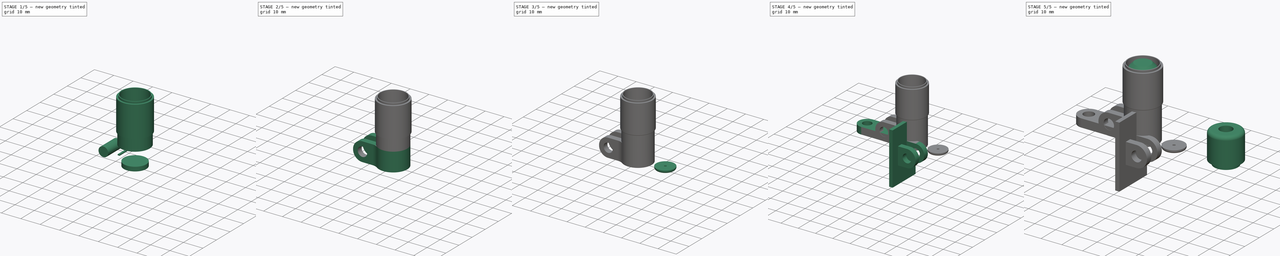
[diagram: build sequence overview — one tinted view per stage of 5, left to right]
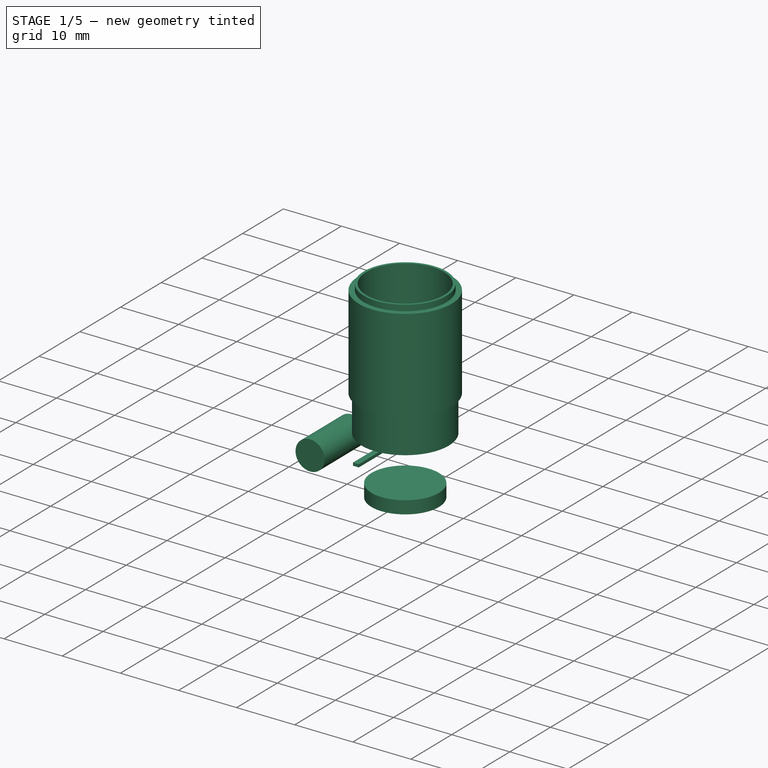
[diagram: stage 1 of 5 — iso view after this stage's code; geometry added in this stage tinted green]
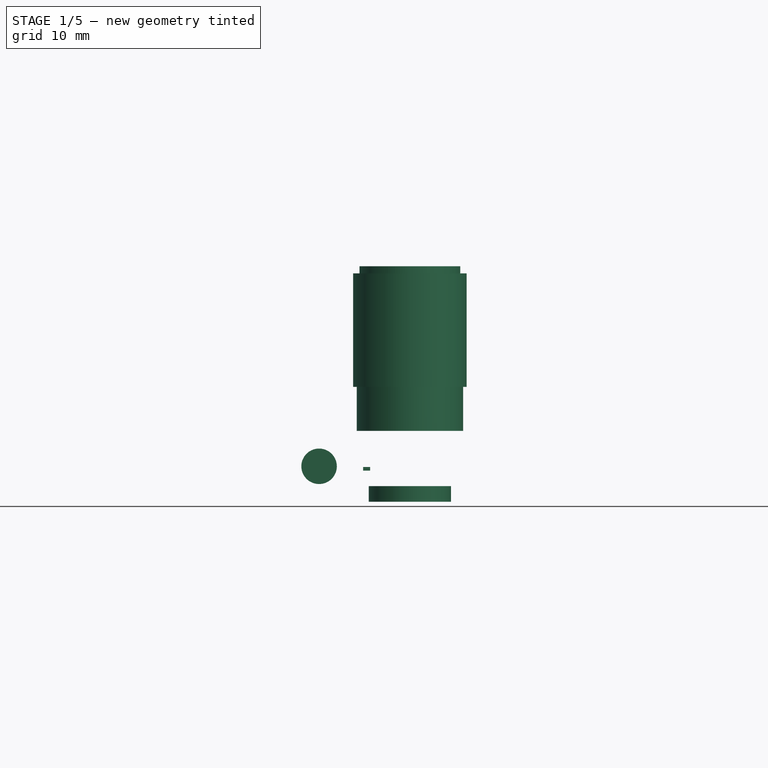
[diagram: stage 1 of 5 — front view after this stage's code; geometry added in this stage tinted green]
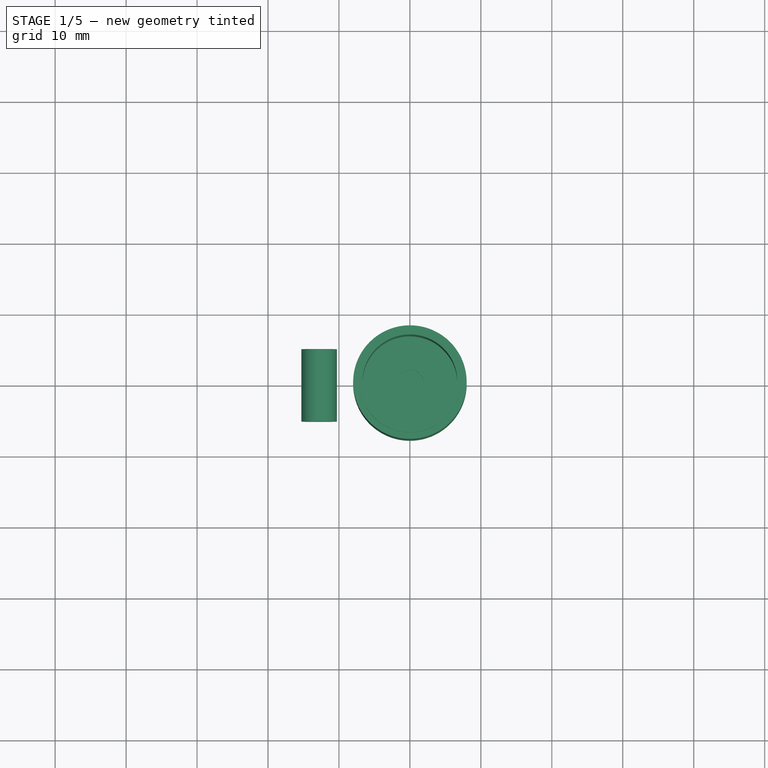
[diagram: stage 1 of 5 — top view after this stage's code; geometry added in this stage tinted green]
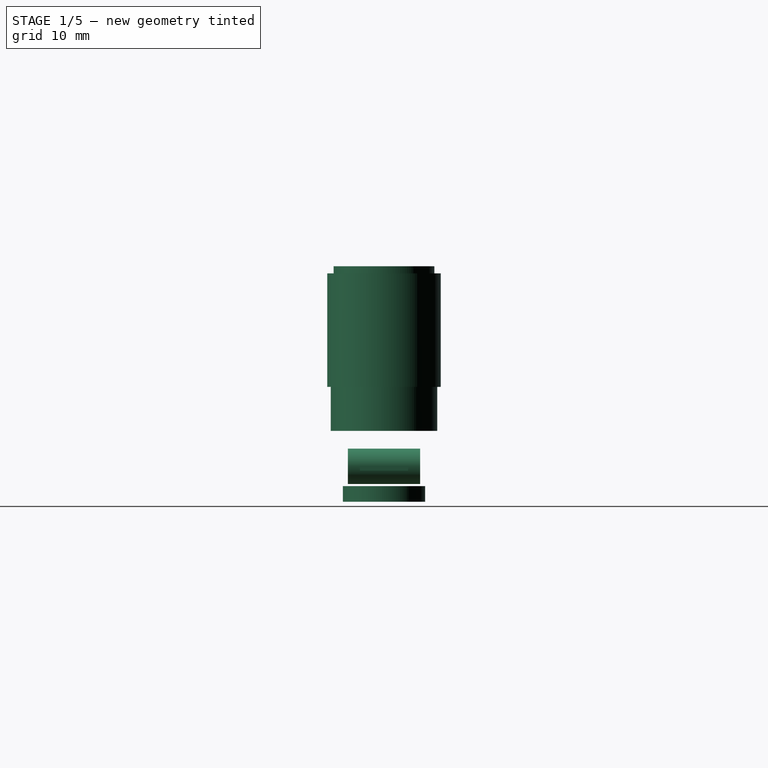
[diagram: stage 1 of 5 — right view after this stage's code; geometry added in this stage tinted green]
FCSTD DOCUMENT  (FreeCAD 0.19R24267 +99 (Git))
Label: Jalusie_All
License: All rights reserved
LicenseURL: http://en.wikipedia.org/wiki/All_rights_reserved
objects: Sketcher::SketchObject×14, Part::Cut×9, Part::Extrusion×6, Part::Revolution×5, Part::Fillet×5, Part::Box×3, Part::Loft×2, Part::Cylinder×2, Part::Fuse×2, Part::Part2DObjectPython×1, Part::FeaturePython×1, Spreadsheet::Sheet×1
note: 50 computed .brp shape members not serialized (recipe doc carries the construction recipe); baked Part::Feature solids carry a one-line shape summary decoded from their .brp

FEATURE [Part::Cylinder] Cylinder  label="Цилиндр"
  Angle = 360
  AttacherType = Attacher::AttachEngine3D
  Height = 2.2
  Radius = 5.8
FEATURE [Sketcher::SketchObject] Sketch008
  FullyConstrained = false
  expr: Constraints[22] = <<Sketch007>>.Constraints.MotorContactHeight
  expr: Constraints[23] = <<Sketch007>>.Constraints.MotorContactHeight
  sketch-geometry (15):
    g0: GeomPoint X=-7 Y=0 Z=0
    g1: ArcOfCircle CenterX=0 CenterY=0 CenterZ=0 NormalX=0 NormalY=0 NormalZ=1 AngleXU=0 Radius=5.2 StartAngle=5.34296 EndAngle=7.22341
    g2: LineSegment StartX=3.06594 StartY=-4.2 StartZ=0 EndX=-4.4 EndY=-4.2 EndZ=0
    g3: LineSegment StartX=-5.2 StartY=-1.3 StartZ=0 EndX=-5.2 EndY=1.3 EndZ=0
    g4: LineSegment StartX=-4.4 StartY=4.2 StartZ=0 EndX=3.06594 EndY=4.2 EndZ=0
    g5: ArcOfCircle CenterX=-4.4 CenterY=-3.2 CenterZ=0 NormalX=0 NormalY=0 NormalZ=1 AngleXU=0 Radius=1 StartAngle=3.78509 EndAngle=4.71239
    g6: ArcOfCircle CenterX=-4.4 CenterY=3.2 CenterZ=0 NormalX=0 NormalY=0 NormalZ=1 AngleXU=0 Radius=1 StartAngle=1.5708 EndAngle=2.49809
    g7: LineSegment StartX=-5.2 StartY=3.8 StartZ=0 EndX=-5.6 EndY=3.8 EndZ=0
    g8: LineSegment StartX=-5.6 StartY=3.8 StartZ=0 EndX=-5.6 EndY=1.3 EndZ=0
    g9: LineSegment StartX=-5.6 StartY=1.3 StartZ=0 EndX=-5.2 EndY=1.3 EndZ=0
    g10: LineSegment StartX=-5.2 StartY=-3.8 StartZ=0 EndX=-5.6 EndY=-3.8 EndZ=0
    g11: LineSegment StartX=-5.6 StartY=-3.8 StartZ=0 EndX=-5.6 EndY=-1.3 EndZ=0
    g12: LineSegment StartX=-5.6 StartY=-1.3 StartZ=0 EndX=-5.2 EndY=-1.3 EndZ=0
    g13: Circle CenterX=0 CenterY=0 CenterZ=0 NormalX=0 NormalY=0 NormalZ=1 AngleXU=0 Radius=7.5
    g14: GeomPoint X=-5.2 Y=0 Z=0
  constraints (42):
    c: Horizontal(g2)
    c: Vertical(g3)
    c: Horizontal(g4)
    c: Coincident(g1,g4)
    c: Coincident(g1,g2)
    c: Tangent(g2,g5) = 1.5708
    c: Tangent(g4,g6) = 1.5708
    c: Horizontal(g7)
    c: Coincident(g7,g8)
    c: Vertical(g8)
    c: Coincident(g9,g8)
    c: Horizontal(g9)
    c: Horizontal(g10)
    c: Coincident(g10,g11)
    c: Vertical(g11)
    c: Coincident(g11,g12)
    c: Horizontal(g12)
    c: Coincident(g3,g12)
    c: Coincident(g3,g9)
    c: Coincident(g13,g1)
    c: Radius(g13) = 7.5
    c: Radius(g1) = 5.2
    c: Distance(g8) = 2.5
    c: Distance(g11) = 2.5
    c: Distance(g12) = 0.4
    c: DistanceX(g1,g1) = 0
    c: DistanceY(g1,g1) = 8.4
    c: DistanceX(g-1,g1) = 0
    c: DistanceY(g1,g-1) = 0
    c: DistanceX(g5,g10) = 0
    c: DistanceY(g5,g10) = 0
    c: DistanceX(g5,g3) = 0
    c: DistanceX(g7,g6) = 0
    c: DistanceY(g7,g6) = 0
    c: Radius(g6) = 1
    c: Radius(g5) = 1
    c: DistanceX(g6,g3) = 0
    c: DistanceX(g8,g11) = 0
    c: PointOnObject(g14,g-1)
    c: Symmetric(g3,g3,g14)
    c: Tangent(g3,g1)
    c: DistanceY(g3,g3) = 2.6
FEATURE [Part::Extrusion] Extrude002
  Base = -> Sketch008
  Dir = (0,0,1)
  DirMode = 2
  FaceMakerClass = Part::FaceMakerBullseye
  LengthFwd = 6.2
  LengthRev = 0
  Placement = pos=(0,0,10) rot=(0,0,1;0rad)
  Solid = true
  Symmetric = false
FEATURE [Sketcher::SketchObject] Sketch009
  FullyConstrained = true
  Placement = pos=(0,0,0) rot=(0.57735,0.57735,0.57735;2.0944rad)
  sketch-geometry (9):
    g0: LineSegment StartX=2 StartY=0 StartZ=0 EndX=8 EndY=0 EndZ=0
    g1: LineSegment StartX=8 StartY=0 StartZ=0 EndX=8 EndY=16 EndZ=0
    g2: LineSegment StartX=6.7 StartY=16 StartZ=0 EndX=6.7 EndY=1 EndZ=0
    g3: LineSegment StartX=6.7 StartY=1 StartZ=0 EndX=2 EndY=1 EndZ=0
    g4: LineSegment StartX=2 StartY=1 StartZ=0 EndX=2 EndY=0 EndZ=0
    g5: LineSegment StartX=6.7 StartY=16 StartZ=0 EndX=6.7 EndY=17 EndZ=0
    g6: LineSegment StartX=6.7 StartY=17 StartZ=0 EndX=7.1 EndY=17 EndZ=0
    g7: LineSegment StartX=7.1 StartY=17 StartZ=0 EndX=7.1 EndY=16 EndZ=0
    g8: LineSegment StartX=7.1 StartY=16 StartZ=0 EndX=8 EndY=16 EndZ=0
  constraints (27):
    c: PointOnObject(g0,g-1)
    c: Horizontal(g0)
    c: Coincident(g0,g1)
    c: Vertical(g1)
    c: Vertical(g2)
    c: Coincident(g2,g3)
    c: Horizontal(g3)
    c: Coincident(g3,g4)
    c: Coincident(g4,g0)
    c: DistanceX(g-1,g0) = 2
    c: DistanceX(g3,g0) = 0
    c: Distance(g4) = 1
    c: Distance(g0) = 6
    c: DistanceX(g3,g3) = 4.7
    c: Distance(g1) = 16
    c: Distance(g2) = 15
    c: Coincident(g2,g5)
    c: Vertical(g5)
    c: Coincident(g5,g6)
    c: Coincident(g6,g7)
    c: Vertical(g7)
    c: Horizontal(g6)
    c: Distance(g5) = 1  'СoverThickness'
    c: Distance(g6) = 0.4
    c: Coincident(g8,g7)
    c: Coincident(g8,g1)
    c: Horizontal(g8)
FEATURE [Part::Revolution] Revolve003
  Angle = 360
  Axis = (0,0,1)
  Base = (0,0,0)
  FaceMakerClass = Part::FaceMakerBullseye
  Placement = pos=(0,0,16.2) rot=(0,0,1;0rad)
  Solid = true
  Source = -> Sketch009
  Symmetric = false
FEATURE [Part::Fuse] Fusion
  Base = -> Extrude002
  Tool = -> Revolve003
FEATURE [Part::Cylinder] Cylinder001  label="CylinderHoll"
  Angle = 360
  AttacherType = Attacher::AttachEngine3D
  Height = 10.2
  Placement = pos=(-12.8,5.1,5) rot=(1,0,0;1.5708rad)
  Radius = 2.5
  expr: Height = <<Sketch007>>.Constraints.SlotWidth + <<Sketch007>>.Constraints.SlotWallWidth * 2
FEATURE [Part::Box] Box  label="Куб"
  AttacherType = Attacher::AttachEngine3D
  Height = 0.5
  Length = 1
  Placement = pos=(-6.6,-3.4,4.4) rot=(0,0,1;0rad)
  Width = 6.8
FEATURE [Spreadsheet::Sheet] Spreadsheet  label="SheetSize"
  cells = A1=Name; B1=Value; A2=Size tolerances 0.2; B2==0.2mm
FEATURE [Part::Box] Box001  label="Куб001"
  AttacherType = Attacher::AttachEngine3D
  Height = 1
  Length = 0.4
  Placement = pos=(-5.6,1.3,16.2) rot=(0,0,1;0rad)
  Width = 2.5
  expr: Height = <<Sketch009>>.Constraints.СoverThickness
  expr: Width = <<Sketch007>>.Constraints.MotorContactHeight
  expr: Length = <<Sketch007>>.Constraints.MotorContactWidth
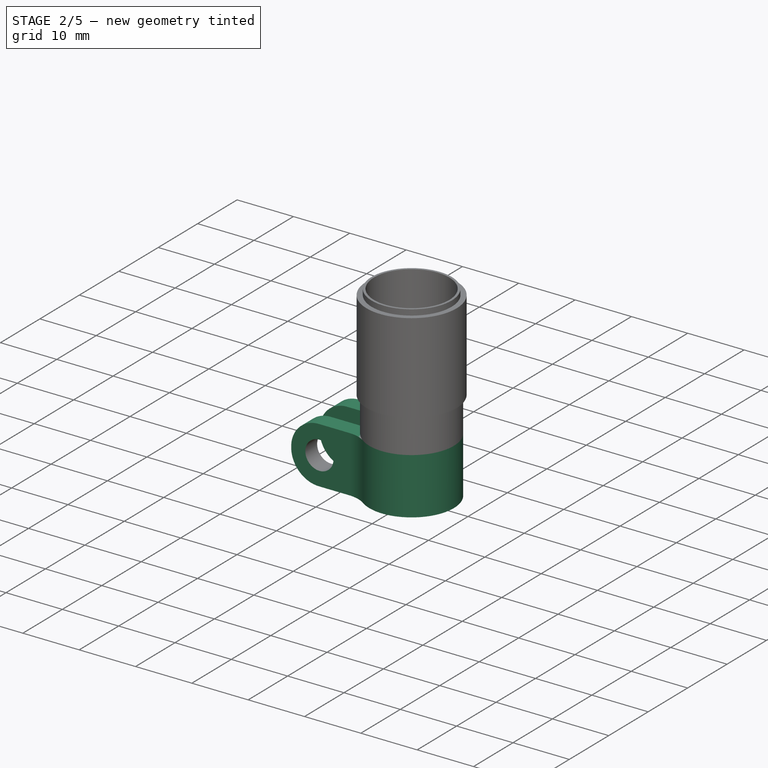
[diagram: stage 2 of 5 — iso view after this stage's code; geometry added in this stage tinted green]
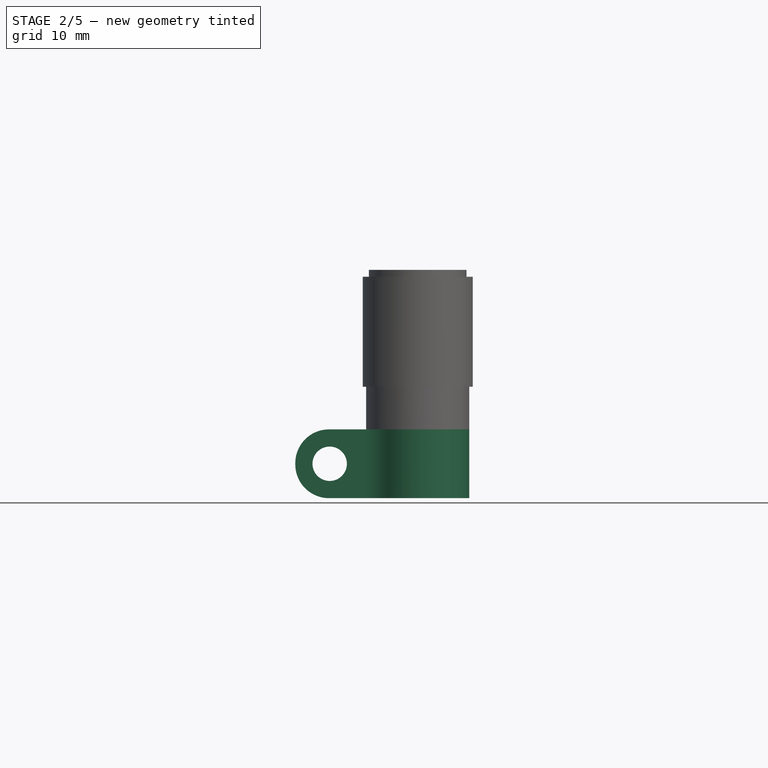
[diagram: stage 2 of 5 — front view after this stage's code; geometry added in this stage tinted green]
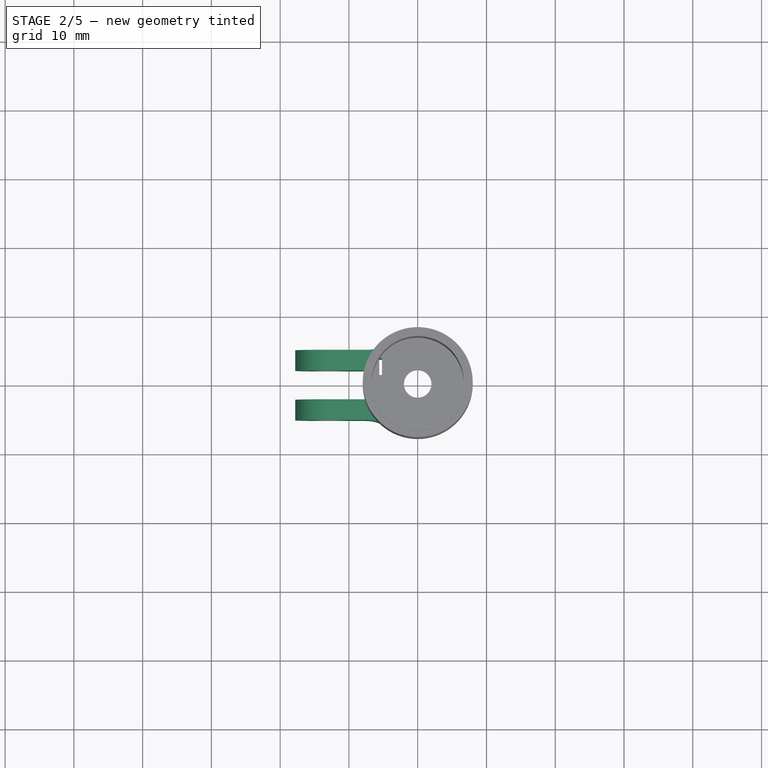
[diagram: stage 2 of 5 — top view after this stage's code; geometry added in this stage tinted green]
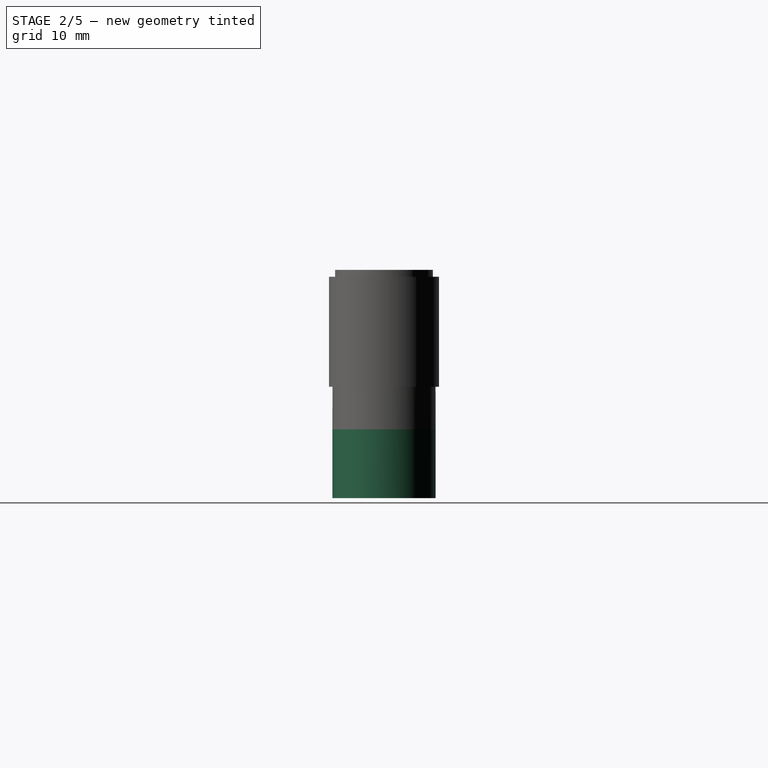
[diagram: stage 2 of 5 — right view after this stage's code; geometry added in this stage tinted green]
FEATURE [Sketcher::SketchObject] Sketch007
  FullyConstrained = false
  expr: .Constraints.Constraint53 = .Constraints.MotorContactHeight
  expr: Constraints[64] = .Constraints.SlotWallWidth
  sketch-geometry (24):
    g0: ArcOfCircle CenterX=0 CenterY=0 CenterZ=0 NormalX=0 NormalY=0 NormalZ=1 AngleXU=0 Radius=7.5 StartAngle=4.09506 EndAngle=8.49138
    g1: LineSegment StartX=-7.52689 StartY=-5.1 StartZ=0 EndX=-17.8 EndY=-5.1 EndZ=0
    g2: LineSegment StartX=-17.8 StartY=-5.1 StartZ=0 EndX=-17.8 EndY=-2.1 EndZ=0
    g3: LineSegment StartX=-17.8 StartY=-2.1 StartZ=0 EndX=-7.6 EndY=-2.1 EndZ=0
    g4: LineSegment StartX=-7.6 StartY=-2.1 StartZ=0 EndX=-7.6 EndY=2.1 EndZ=0
    g5: LineSegment StartX=-7.6 StartY=2.1 StartZ=0 EndX=-17.8 EndY=2.1 EndZ=0
    g6: LineSegment StartX=-17.8 StartY=2.1 StartZ=0 EndX=-17.8 EndY=5.1 EndZ=0
    g7: LineSegment StartX=-17.8 StartY=5.1 StartZ=0 EndX=-7.2739 EndY=5.1 EndZ=0
    g8: GeomPoint X=-7.6 Y=0 Z=0
    g9: ArcOfCircle CenterX=-7.52689 CenterY=-10.6029 CenterZ=0 NormalX=0 NormalY=0 NormalZ=1 AngleXU=0 Radius=5.50294 StartAngle=0.953465 EndAngle=1.5708
    g10: ArcOfCircle CenterX=-7.2739 CenterY=9.82284 CenterZ=0 NormalX=0 NormalY=0 NormalZ=1 AngleXU=0 Radius=4.72284 StartAngle=4.71239 EndAngle=5.34979
    g11: ArcOfCircle CenterX=0 CenterY=0 CenterZ=0 NormalX=0 NormalY=0 NormalZ=1 AngleXU=0 Radius=5.2 StartAngle=5.34296 EndAngle=7.22341
    g12: LineSegment StartX=3.06594 StartY=-4.2 StartZ=0 EndX=-4.4 EndY=-4.2 EndZ=0
    g13: LineSegment StartX=-5.2 StartY=-1.3 StartZ=0 EndX=-5.2 EndY=1.3 EndZ=0
    g14: LineSegment StartX=-4.4 StartY=4.2 StartZ=0 EndX=3.06594 EndY=4.2 EndZ=0
    g15: ArcOfCircle CenterX=-4.4 CenterY=-3.2 CenterZ=0 NormalX=0 NormalY=0 NormalZ=1 AngleXU=0 Radius=1 StartAngle=3.78509 EndAngle=4.71239
    g16: ArcOfCircle CenterX=-4.4 CenterY=3.2 CenterZ=0 NormalX=0 NormalY=0 NormalZ=1 AngleXU=0 Radius=1 StartAngle=1.5708 EndAngle=2.49809
    g17: LineSegment StartX=-5.2 StartY=3.8 StartZ=0 EndX=-5.6 EndY=3.8 EndZ=0
    g18: LineSegment StartX=-5.6 StartY=3.8 StartZ=0 EndX=-5.6 EndY=1.3 EndZ=0
    g19: LineSegment StartX=-5.6 StartY=1.3 StartZ=0 EndX=-5.2 EndY=1.3 EndZ=0
    g20: LineSegment StartX=-5.2 StartY=-3.8 StartZ=0 EndX=-5.6 EndY=-3.8 EndZ=0
    g21: LineSegment StartX=-5.6 StartY=-3.8 StartZ=0 EndX=-5.6 EndY=-1.3 EndZ=0
    g22: LineSegment StartX=-5.6 StartY=-1.3 StartZ=0 EndX=-5.2 EndY=-1.3 EndZ=0
    g23: GeomPoint X=-5.2 Y=0 Z=0
  constraints (67):
    c: Radius(g0) = 7.5
    c: Horizontal(g1)
    c: Coincident(g1,g2)
    c: Vertical(g2)
    c: Coincident(g2,g3)
    c: Horizontal(g3)
    c: Coincident(g3,g4)
    c: Vertical(g4)
    c: Coincident(g4,g5)
    c: Horizontal(g5)
    c: Coincident(g5,g6)
    c: Vertical(g6)
    c: Coincident(g6,g7)
    c: Horizontal(g7)
    c: Symmetric(g4,g4,g8)
    c: Distance(g2) = 3  'SlotWallWidth'
    c: DistanceX(g2,g5) = 0
    c: Distance(g3) = 10.2  'SlotLen'
    c: Tangent(g0,g9) = 1.5708
    c: Tangent(g1,g9) = -1.5708
    c: Tangent(g7,g10) = -1.5708
    c: Tangent(g0,g10) = 1.5708
    c: Coincident(g11,g0)
    c: Radius(g11) = 5.2
    c: Horizontal(g12)
    c: Vertical(g13)
    c: Horizontal(g14)
    c: DistanceY(g0,g8) = 0
    c: DistanceY(g-1,g0) = 0
    c: DistanceX(g0,g-1) = 0
    c: Coincident(g11,g14)
    c: Coincident(g11,g12)
    c: Tangent(g12,g15) = 1.5708
    c: Tangent(g14,g16) = 1.5708
    c: Radius(g16) = 1
    c: Radius(g15) = 1
    c: Horizontal(g17)
    c: Coincident(g17,g18)
    c: Vertical(g18)
    c: Tangent(g13,g11)
    c: Coincident(g19,g18)
    c: Horizontal(g19)
    c: Horizontal(g20)
    c: Coincident(g20,g21)
    c: Vertical(g21)
    c: Coincident(g21,g22)
    c: Horizontal(g22)
    c: DistanceX(g11,g11) = 0
    c: DistanceY(g11,g11) = 8.4
    c: Distance(g22) = 0.4  'MotorContactWidth'
    c: DistanceX(g18,g21) = 0
    c: Distance(g21) = 2.5  'MotorContactHeight'
    c: Distance(g18) = 2.5  'Constraint53'
    c: Coincident(g13,g22)
    c: Coincident(g13,g19)
    c: Symmetric(g13,g13,g23)
    c: DistanceY(g0,g23) = 0
    c: DistanceY(g17,g16) = 0
    c: DistanceX(g20,g15) = 0
    c: DistanceY(g15,g20) = 0
    c: DistanceX(g17,g16) = 0
    c: DistanceX(g13,g16) = 0
    c: DistanceX(g14,g12) = 0
    c: Distance(g13) = 2.6
    c: Distance(g6) = 3
    c: DistanceX(g8,g21) = 2
    c: DistanceY(g2,g5) = 4.2  'SlotWidth'
FEATURE [Part::Extrusion] Extrude001
  Base = -> Sketch007
  Dir = (0,0,1)
  DirMode = 2
  FaceMakerClass = Part::FaceMakerBullseye
  LengthFwd = 10
  LengthRev = 0
  Solid = true
  Symmetric = false
FEATURE [Part::Cut] Cut003
  Base = -> Extrude001
  Tool = -> Cylinder
FEATURE [Part::Fillet] Fillet
  Base = -> Cut003
  Edges = 4 edges r=4.9: [Edge12,Edge15,Edge31,Edge35]
FEATURE [Part::Fuse] Fusion001
  Base = -> Fillet
  Tool = -> Fusion
FEATURE [Part::Cut] Cut004
  Base = -> Fusion001
  Tool = -> Cylinder001
FEATURE [Part::Cut] Cut005
  Base = -> Cut004
  Tool = -> Box
FEATURE [Part::Cut] Cut009
  Base = -> Cut005
  Tool = -> Box001
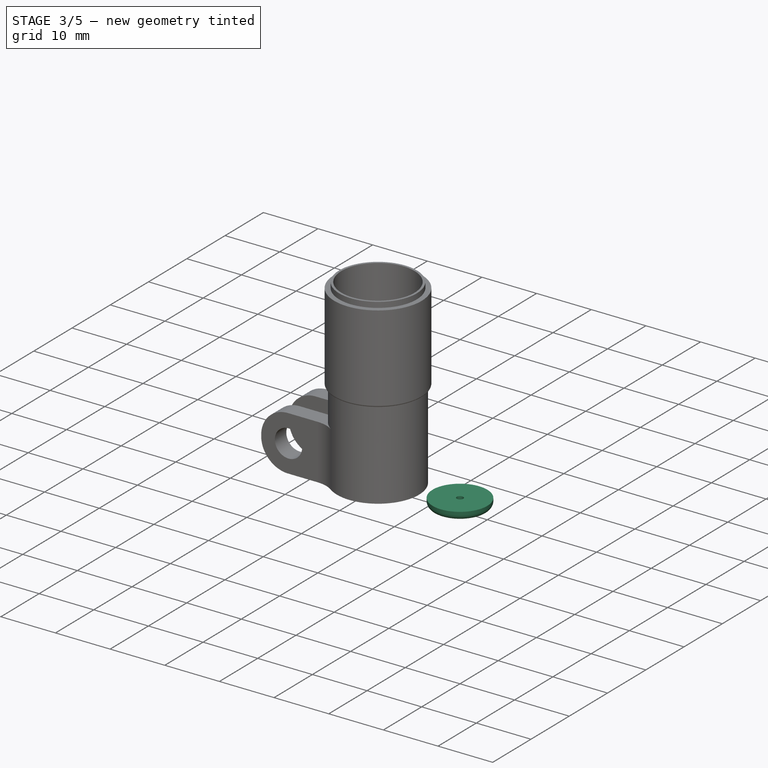
[diagram: stage 3 of 5 — iso view after this stage's code; geometry added in this stage tinted green]
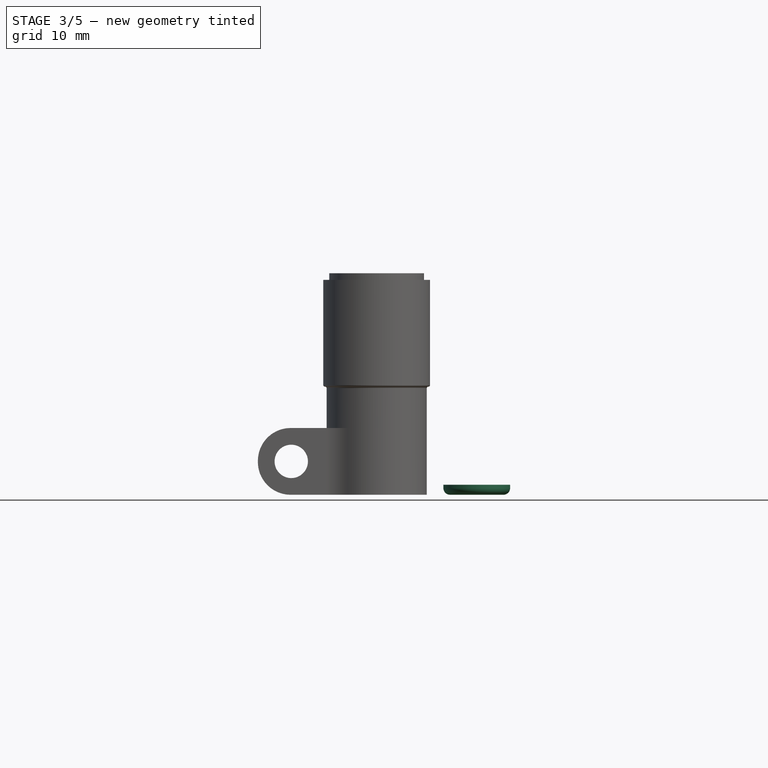
[diagram: stage 3 of 5 — front view after this stage's code; geometry added in this stage tinted green]
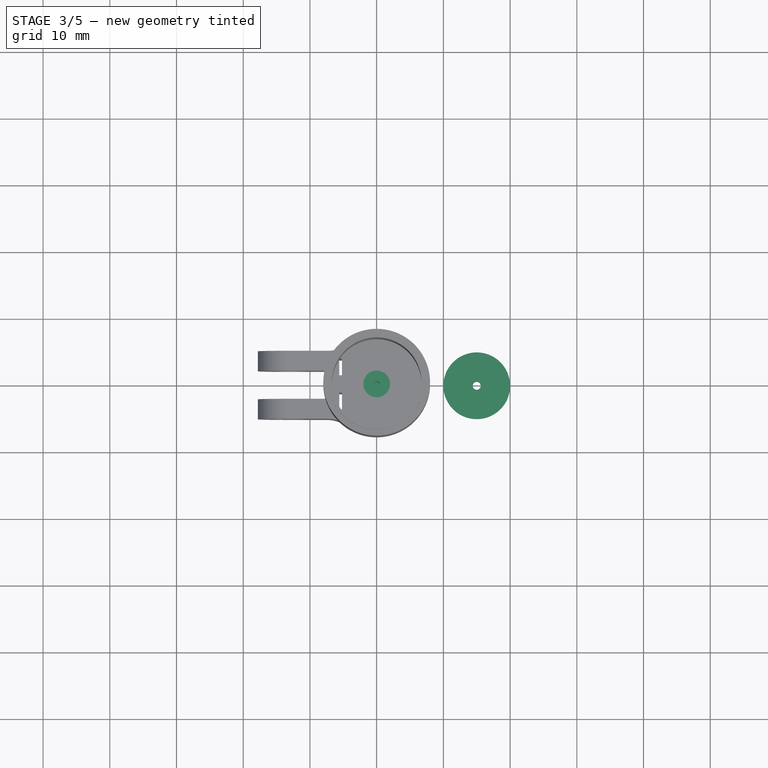
[diagram: stage 3 of 5 — top view after this stage's code; geometry added in this stage tinted green]
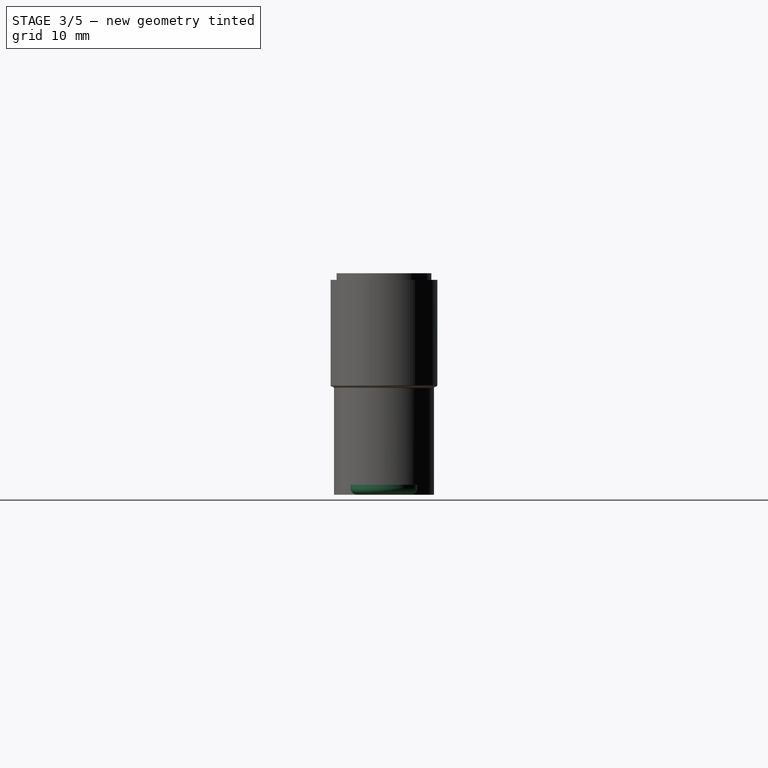
[diagram: stage 3 of 5 — right view after this stage's code; geometry added in this stage tinted green]
FEATURE [Sketcher::SketchObject] Sketch013
  FullyConstrained = false
  Placement = pos=(0,0,0) rot=(1,0,0;1.5708rad)
  expr: Constraints[16] = <<Extrude001>>.LengthFwd / 2
  sketch-geometry (8):
    g0: LineSegment StartX=0 StartY=0 StartZ=0 EndX=5 EndY=0 EndZ=0
    g1: LineSegment StartX=5 StartY=0 StartZ=0 EndX=5 EndY=1.5 EndZ=0
    g2: LineSegment StartX=5 StartY=1.5 StartZ=0 EndX=2.3 EndY=1.5 EndZ=0
    g3: LineSegment StartX=2.3 StartY=1.5 StartZ=0 EndX=2.3 EndY=10.9 EndZ=0
    g4: LineSegment StartX=2.3 StartY=10.9 StartZ=0 EndX=0.5 EndY=10.9 EndZ=0
    g5: LineSegment StartX=0.5 StartY=10.9 StartZ=0 EndX=0.5 EndY=5.6444 EndZ=0
    g6: LineSegment StartX=0.5 StartY=5.6444 StartZ=0 EndX=0 EndY=5.6444 EndZ=0
    g7: LineSegment StartX=0 StartY=5.6444 StartZ=0 EndX=0 EndY=0 EndZ=0
  constraints (22):
    c: Coincident(g-1,g0)
    c: PointOnObject(g0,g-1)
    c: Coincident(g0,g1)
    c: Vertical(g1)
    c: Coincident(g1,g2)
    c: Horizontal(g2)
    c: Coincident(g2,g3)
    c: Vertical(g3)
    c: Coincident(g3,g4)
    c: Coincident(g4,g5)
    c: Vertical(g5)
    c: Coincident(g5,g6)
    c: PointOnObject(g6,g-2)
    c: Horizontal(g6)
    c: Coincident(g6,g7)
    c: Coincident(g7,g0)
    c: Distance(g0) = 5
    c: Distance(g1) = 1.5
    c: Horizontal(g4)
    c: Distance(g4) = 1.8
    c: Distance(g3) = 9.4
    c: DistanceX(g6,g2) = 2.3
FEATURE [Part::Revolution] Revolve004  label="_7_"
  Angle = 360
  Axis = (0,0,1)
  Base = (0,0,0)
  FaceMakerClass = Part::FaceMakerBullseye
  Solid = true
  Source = -> Sketch013
  Symmetric = false
FEATURE [Part::FeaturePython] Tube  label="_8_"  # WARN: FeaturePython — macro-defined, semantics opaque (R4)
  AttacherType = Attacher::AttachEngine3D
  Height = 1.5
  InnerRadius = 0.6
  OuterRadius = 5
  Placement = pos=(15,0,0) rot=(0,0,1;0rad)
FEATURE [Part::Fillet] Fillet002  label="_8_001"
  Base = -> Tube
  Edges = 1 edges r=1: [Edge3]
FEATURE [Part::Box] Box002  label="Куб002"
  AttacherType = Attacher::AttachEngine3D
  Height = 1
  Length = 0.4
  Placement = pos=(-5.6,-3.8,16.2) rot=(0,0,1;0rad)
  Width = 2.5
  expr: Height = <<Sketch009>>.Constraints.СoverThickness
  expr: Length = <<Sketch007>>.Constraints.MotorContactWidth
  expr: Width = <<Sketch007>>.Constraints.MotorContactHeight
FEATURE [Part::Cut] Cut010  label="_4_"
  Base = -> Cut009
  Tool = -> Box002
FEATURE [Part::Fillet] Fillet003
  Base = -> Cut010
  Edges = 1 edges r=0.25: [Edge141]
FEATURE [Part::Fillet] Fillet004
  Base = -> Fillet003
  Edges = 1 edges r=0.24: [Edge2]
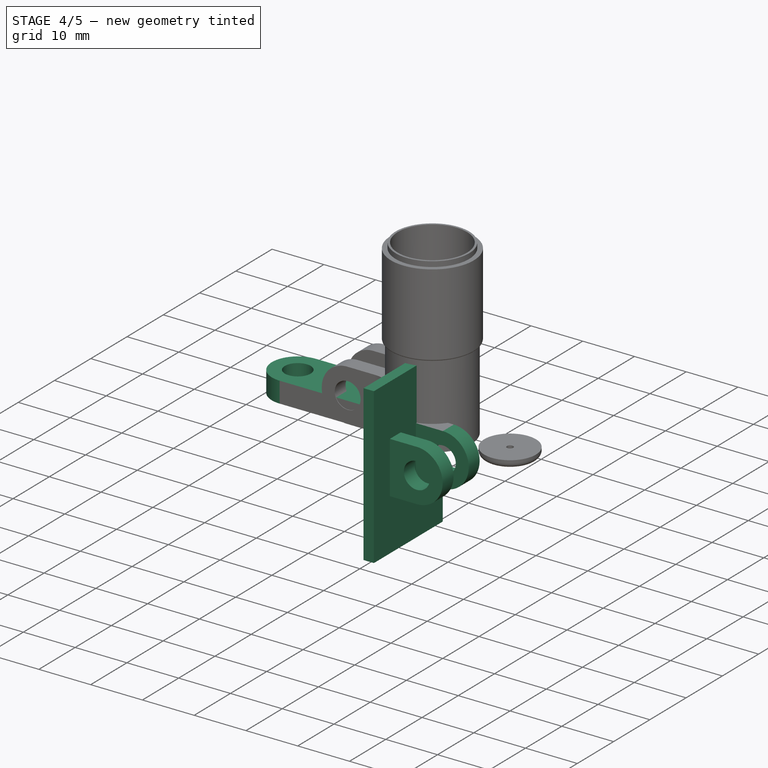
[diagram: stage 4 of 5 — iso view after this stage's code; geometry added in this stage tinted green]
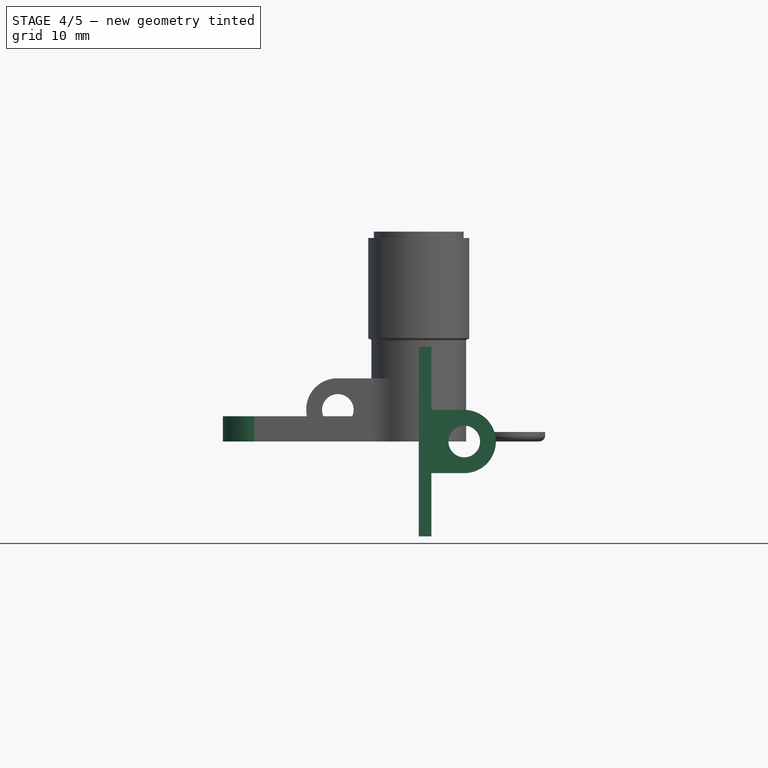
[diagram: stage 4 of 5 — front view after this stage's code; geometry added in this stage tinted green]
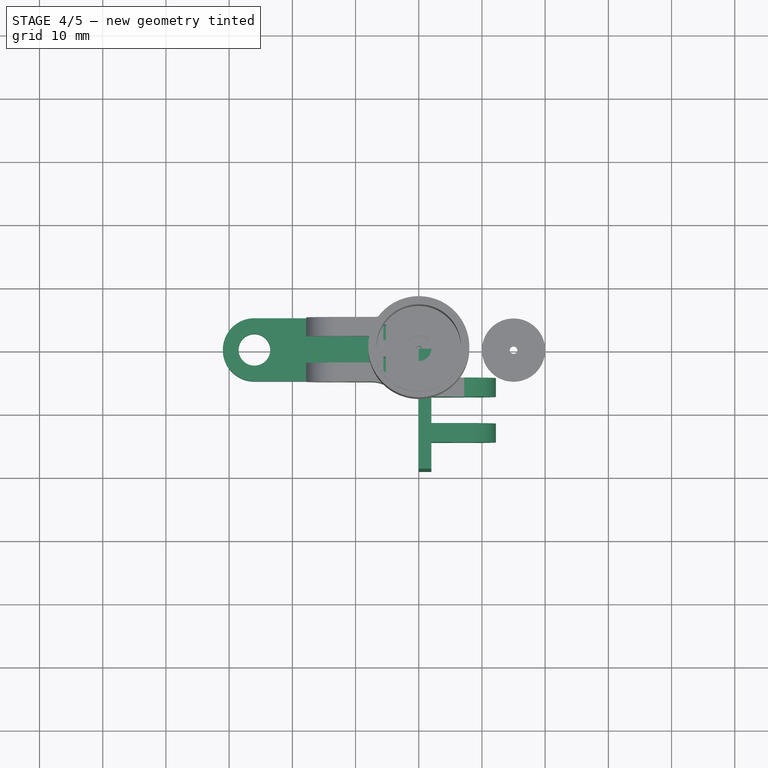
[diagram: stage 4 of 5 — top view after this stage's code; geometry added in this stage tinted green]
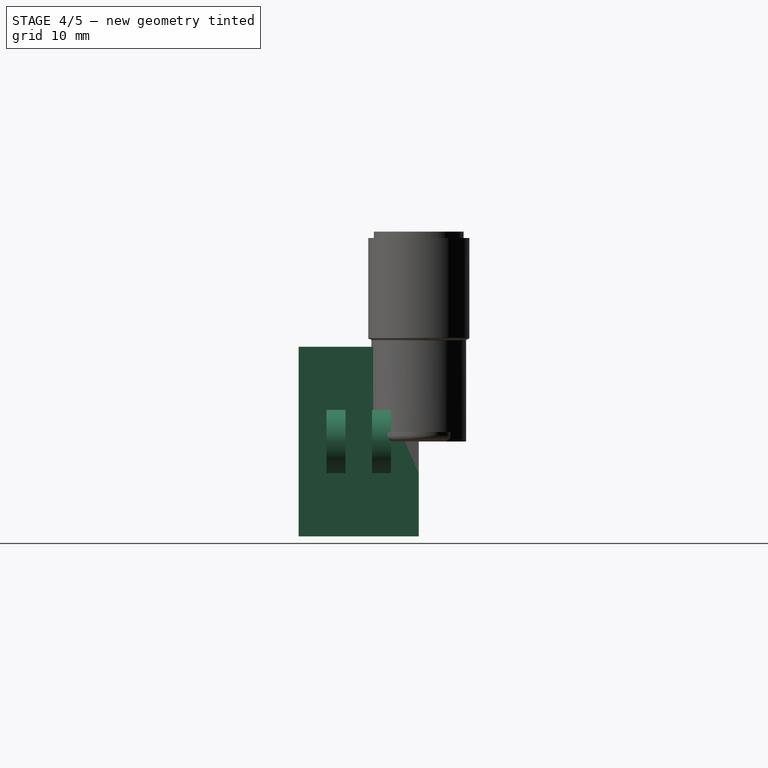
[diagram: stage 4 of 5 — right view after this stage's code; geometry added in this stage tinted green]
FEATURE [Part::Part2DObjectPython] InvoluteGear  # Draft 2D object (typed FeaturePython)
  ExternalGear = true
  HighPrecision = true
  Modules = 0.48
  NumberOfTeeth = 11
  PressureAngle = 20
FEATURE [Part::Extrusion] Extrude
  Base = -> InvoluteGear
  Dir = (0,0,1)
  DirMode = 2
  FaceMakerClass = Part::FaceMakerBullseye
  LengthFwd = 3
  LengthRev = 0
  Solid = true
  Symmetric = false
FEATURE [Sketcher::SketchObject] Sketch006
  FullyConstrained = true
  Placement = pos=(0,0,0) rot=(0.57735,0.57735,0.57735;2.0944rad)
  sketch-geometry (7):
    g0: LineSegment StartX=4.9 StartY=0 StartZ=0 EndX=4.9 EndY=4.93934 EndZ=0
    g1: LineSegment StartX=4.9 StartY=4.93934 StartZ=0 EndX=3.83934 EndY=6 EndZ=0
    g2: LineSegment StartX=3.83934 StartY=6 StartZ=0 EndX=1.5 EndY=6 EndZ=0
    g3: LineSegment StartX=1.5 StartY=6 StartZ=0 EndX=1.5 EndY=4 EndZ=0
    g4: LineSegment StartX=1.5 StartY=4 StartZ=0 EndX=0.8 EndY=4 EndZ=0
    g5: LineSegment StartX=0.8 StartY=4 StartZ=0 EndX=0.8 EndY=0 EndZ=0
    g6: LineSegment StartX=0.8 StartY=0 StartZ=0 EndX=4.9 EndY=0 EndZ=0
  constraints (21):
    c: Coincident(g0,g1)
    c: Coincident(g1,g2)
    c: Coincident(g2,g3)
    c: Coincident(g3,g4)
    c: Coincident(g4,g5)
    c: Coincident(g5,g6)
    c: Coincident(g6,g0)
    c: DistanceX(g-1,g5) = 0.8
    c: Distance(g6) = 4.1
    c: Horizontal(g6)
    c: DistanceY(g-1,g5) = 0
    c: Distance(g5) = 4
    c: Horizontal(g4)
    c: Vertical(g5)
    c: Distance(g3) = 2
    c: Vertical(g3)
    c: Horizontal(g2)
    c: Vertical(g0)
    c: Distance(g1) = 1.5
    c: Angle(g1) = 2.35619
    c: DistanceX(g-1,g3) = 1.5
FEATURE [Part::Revolution] Revolve002
  Angle = 360
  Axis = (0,0,1)
  Base = (0,0,0)
  FaceMakerClass = Part::FaceMakerBullseye
  Solid = true
  Source = -> Sketch006
  Symmetric = false
FEATURE [Sketcher::SketchObject] Sketch010
  FullyConstrained = true
  expr: Constraints[11] = <<CylinderHoll>>.Radius
  expr: Constraints[1] = <<Extrude001>>.LengthFwd / 2
  expr: Constraints[12] = <<CylinderHoll>>.Radius
  sketch-geometry (6):
    g0: ArcOfCircle CenterX=0 CenterY=0 CenterZ=0 NormalX=0 NormalY=0 NormalZ=1 AngleXU=0 Radius=5 StartAngle=4.71239 EndAngle=7.85398
    g1: LineSegment StartX=1.5e-15 StartY=5 StartZ=0 EndX=-26 EndY=5 EndZ=0
    g2: LineSegment StartX=-9e-16 StartY=-5 StartZ=0 EndX=-26 EndY=-5 EndZ=0
    g3: ArcOfCircle CenterX=-26 CenterY=-1e-16 CenterZ=0 NormalX=0 NormalY=0 NormalZ=1 AngleXU=0 Radius=5 StartAngle=1.5708 EndAngle=4.71239
    g4: Circle CenterX=-26 CenterY=-1e-16 CenterZ=0 NormalX=0 NormalY=0 NormalZ=1 AngleXU=0 Radius=2.5
    g5: Circle CenterX=0 CenterY=0 CenterZ=0 NormalX=0 NormalY=0 NormalZ=1 AngleXU=0 Radius=2.5
  constraints (15):
    c: Coincident(g0,g-1)
    c: Radius(g0) = 5
    c: Horizontal(g1)
    c: Horizontal(g2)
    c: Tangent(g0,g2) = 1.5708
    c: Tangent(g0,g1) = -1.5708
    c: Distance(g3,g0) = 26
    c: Coincident(g3,g1)
    c: Coincident(g3,g2)
    c: Coincident(g4,g3)
    c: Coincident(g5,g0)
    c: Radius(g4) = 2.5
    c: Radius(g5) = 2.5
    c: DistanceX(g3,g1) = 0
    c: DistanceX(g3,g2) = 0
FEATURE [Part::Extrusion] Extrude003  label="_5_"
  Base = -> Sketch010
  Dir = (0,0,1)
  DirMode = 2
  FaceMakerClass = Part::FaceMakerBullseye
  LengthFwd = 4
  LengthRev = 0
  Solid = true
  Symmetric = false
  expr: LengthFwd = <<Sketch007>>.Constraints.SlotWidth - <<SheetSize>>.B2
FEATURE [Sketcher::SketchObject] Sketch011
  FullyConstrained = true
  Placement = pos=(0,0,0) rot=(1,0,0;1.5708rad)
  expr: Constraints[14] = <<Extrude001>>.LengthFwd / 2
  expr: Constraints[22] = <<Sketch007>>.Constraints.SlotLen - <<Extrude001>>.LengthFwd / 2
  expr: Constraints[18] = <<CylinderHoll>>.Radius
  expr: Constraints[25] = .Constraints.Len
  sketch-geometry (9):
    g0: ArcOfCircle CenterX=7.2 CenterY=0 CenterZ=0 NormalX=0 NormalY=0 NormalZ=1 AngleXU=0 Radius=5 StartAngle=4.71239 EndAngle=7.85398
    g1: LineSegment StartX=7.2 StartY=5 StartZ=0 EndX=2 EndY=5 EndZ=0
    g2: LineSegment StartX=2 StartY=5 StartZ=0 EndX=2 EndY=15 EndZ=0
    g3: LineSegment StartX=2 StartY=15 StartZ=0 EndX=0 EndY=15 EndZ=0
    g4: LineSegment StartX=0 StartY=15 StartZ=0 EndX=0 EndY=-15 EndZ=0
    g5: LineSegment StartX=0 StartY=-15 StartZ=0 EndX=2 EndY=-15 EndZ=0
    g6: LineSegment StartX=2 StartY=-15 StartZ=0 EndX=2 EndY=-5 EndZ=0
    g7: LineSegment StartX=2 StartY=-5 StartZ=0 EndX=7.2 EndY=-5 EndZ=0
    g8: Circle CenterX=7.2 CenterY=0 CenterZ=0 NormalX=0 NormalY=0 NormalZ=1 AngleXU=0 Radius=2.5
  constraints (27):
    c: PointOnObject(g0,g-1)
    c: Horizontal(g1)
    c: Coincident(g1,g2)
    c: Vertical(g2)
    c: Coincident(g2,g3)
    c: Horizontal(g3)
    c: Coincident(g3,g4)
    c: Vertical(g4)
    c: Coincident(g4,g5)
    c: Horizontal(g5)
    c: Coincident(g5,g6)
    c: Vertical(g6)
    c: Coincident(g6,g7)
    c: Horizontal(g7)
    c: Radius(g0) = 5
    c: DistanceX(g1,g0) = 0
    c: DistanceX(g1,g7) = 0
    c: Coincident(g8,g0)
    c: Radius(g8) = 2.5
    c: Coincident(g0,g7)
    c: Coincident(g0,g1)
    c: Distance(g3) = 2  'Height'
    c: Distance(g1) = 5.2
    c: DistanceX(g1,g6) = 0
    c: Distance(g6) = 10  'Len'
    c: Distance(g2) = 10
    c: DistanceX(g-1,g4) = 0
FEATURE [Part::Extrusion] Extrude004
  Base = -> Sketch011
  Dir = (0,-1,2e-16)
  DirMode = 2
  FaceMakerClass = Part::FaceMakerBullseye
  LengthFwd = 19
  LengthRev = 0
  Solid = true
  Symmetric = false
FEATURE [Sketcher::SketchObject] Sketch012
  FullyConstrained = true
  Placement = pos=(0,0,0) rot=(0.57735,0.57735,0.57735;2.0944rad)
  expr: Constraints[18] = (.Constraints.PlateWidth - .Constraints.SlotWallWidth * 2 - .Constraints.SlotWidth) / 2
  expr: .Constraints.PlateWidth = <<Extrude004>>.LengthFwd
  expr: .Constraints.SlotWallWidth = <<Sketch007>>.Constraints.SlotWallWidth
  expr: .Constraints.SlotWidth = <<Sketch007>>.Constraints.SlotWidth
  expr: Constraints[8] = .Constraints.SlotWallWidth
  expr: Constraints[27] = <<Sketch011>>.Constraints.Len
  expr: Constraints[29] = <<Extrude001>>.LengthFwd
  expr: Constraints[28] = <<Sketch011>>.Constraints.Len
  sketch-geometry (12):
    g0: LineSegment StartX=-14.6 StartY=5 StartZ=0 EndX=-14.6 EndY=-5 EndZ=0
    g1: LineSegment StartX=-14.6 StartY=5 StartZ=0 EndX=-11.6 EndY=5 EndZ=0
    g2: LineSegment StartX=-7.4 StartY=5 StartZ=0 EndX=-4.4 EndY=5 EndZ=0
    g3: LineSegment StartX=-4.4 StartY=-5 StartZ=0 EndX=-7.4 EndY=-5 EndZ=0
    g4: LineSegment StartX=-11.6 StartY=-5 StartZ=0 EndX=-14.6 EndY=-5 EndZ=0
    g5: LineSegment StartX=-11.6 StartY=-5 StartZ=0 EndX=-11.6 EndY=5 EndZ=0
    g6: LineSegment StartX=-4.4 StartY=5 StartZ=0 EndX=-4.4 EndY=-5 EndZ=0
    g7: LineSegment StartX=-7.4 StartY=-5 StartZ=0 EndX=-7.4 EndY=5 EndZ=0
    g8: LineSegment StartX=0 StartY=-15 StartZ=0 EndX=-19 EndY=-15 EndZ=0
    g9: LineSegment StartX=-19 StartY=-15 StartZ=0 EndX=-19 EndY=15 EndZ=0
    g10: LineSegment StartX=-19 StartY=15 StartZ=0 EndX=0 EndY=15 EndZ=0
    g11: LineSegment StartX=0 StartY=15 StartZ=0 EndX=0 EndY=-15 EndZ=0
  constraints (36):
    c: Vertical(g0)
    c: Horizontal(g1)
    c: Horizontal(g2)
    c: Coincident(g4,g0)
    c: Horizontal(g4)
    c: DistanceX(g2,g3) = 0
    c: Distance(g2) = 3  'SlotWallWidth'
    c: DistanceX(g2,g3) = 0
    c: Distance(g1) = 3
    c: DistanceX(g1,g4) = 0
    c: Coincident(g5,g4)
    c: Coincident(g5,g1)
    c: Coincident(g6,g2)
    c: Coincident(g6,g3)
    c: Coincident(g7,g3)
    c: Coincident(g7,g2)
    c: DistanceX(g1,g2) = 4.2  'SlotWidth'
    c: Horizontal(g8)
    c: DistanceX(g3,g8) = 4.4
    c: Coincident(g8,g9)
    c: Vertical(g9)
    c: Coincident(g9,g10)
    c: PointOnObject(g10,g-2)
    c: Horizontal(g10)
    c: Coincident(g10,g11)
    c: Coincident(g11,g8)
    c: DistanceX(g0,g1) = 0
    c: DistanceY(g0,g9) = 10
    c: DistanceY(g8,g0) = 10
    c: Distance(g0) = 10
    c: DistanceY(g1,g0) = 0
    c: DistanceY(g1,g2) = 0
    c: DistanceY(g4,g3) = 0
    c: Horizontal(g3)
    c: Symmetric(g11,g11,g-1)
    c: Distance(g10) = 19  'PlateWidth'
FEATURE [Part::Extrusion] Extrude005
  Base = -> Sketch012
  Dir = (1,0,0)
  DirMode = 2
  FaceMakerClass = Part::FaceMakerBullseye
  LengthFwd = 10.2
  LengthRev = 0
  Placement = pos=(2,0,0) rot=(0,0,1;0rad)
  Solid = true
  Symmetric = false
  expr: .Placement.Base.x = <<Sketch011>>.Constraints.Height
  expr: LengthFwd = <<Sketch007>>.Constraints.SlotLen
FEATURE [Part::Cut] Cut008  label="_6_"
  Base = -> Extrude004
  Tool = -> Extrude005
FEATURE [Part::Fillet] Fillet001  label="_7_001"
  Base = -> Revolve004
  Edges = 1 edges r=1: [Edge1]
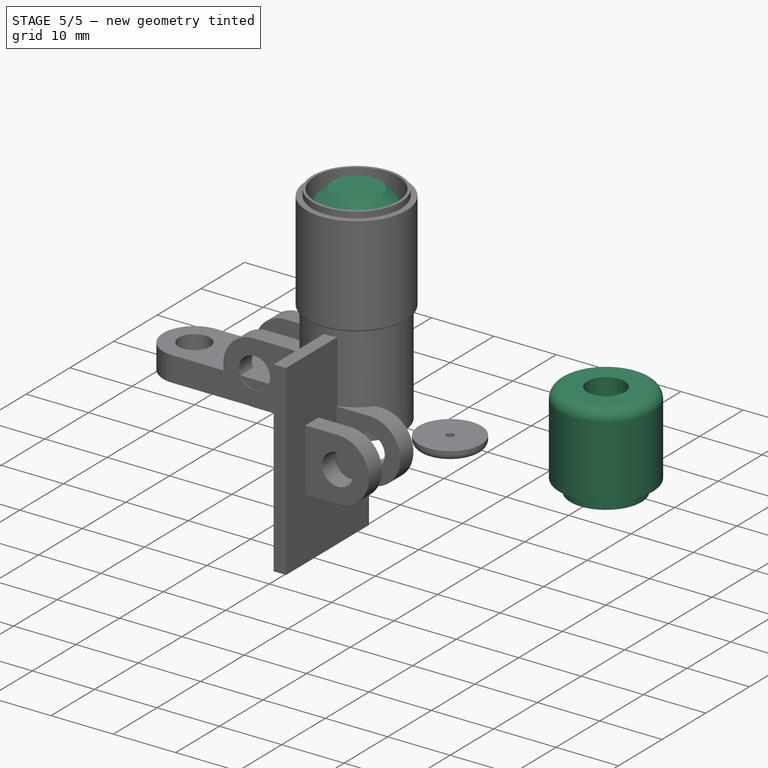
[diagram: stage 5 of 5 — iso view after this stage's code; geometry added in this stage tinted green]
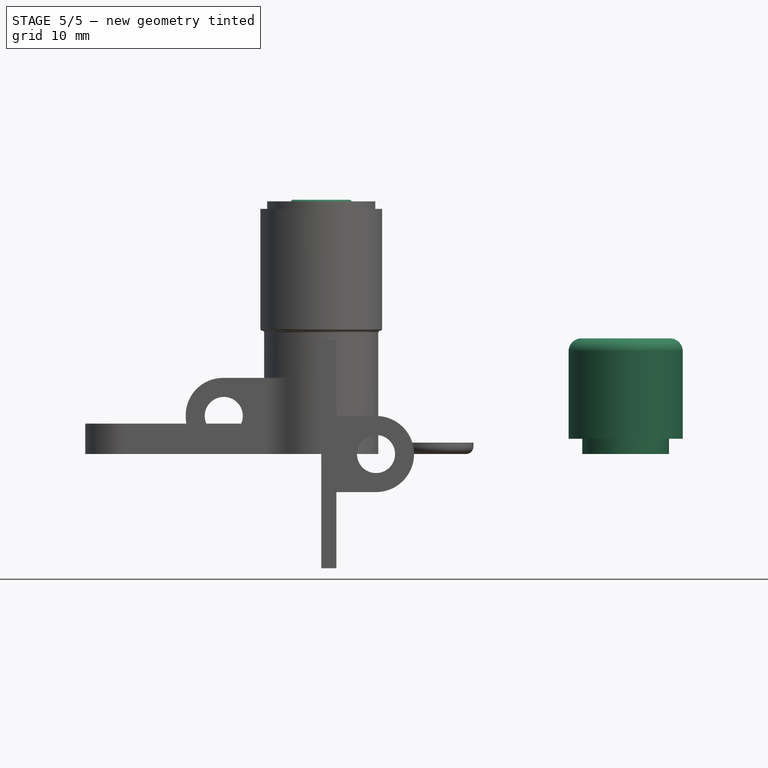
[diagram: stage 5 of 5 — front view after this stage's code; geometry added in this stage tinted green]
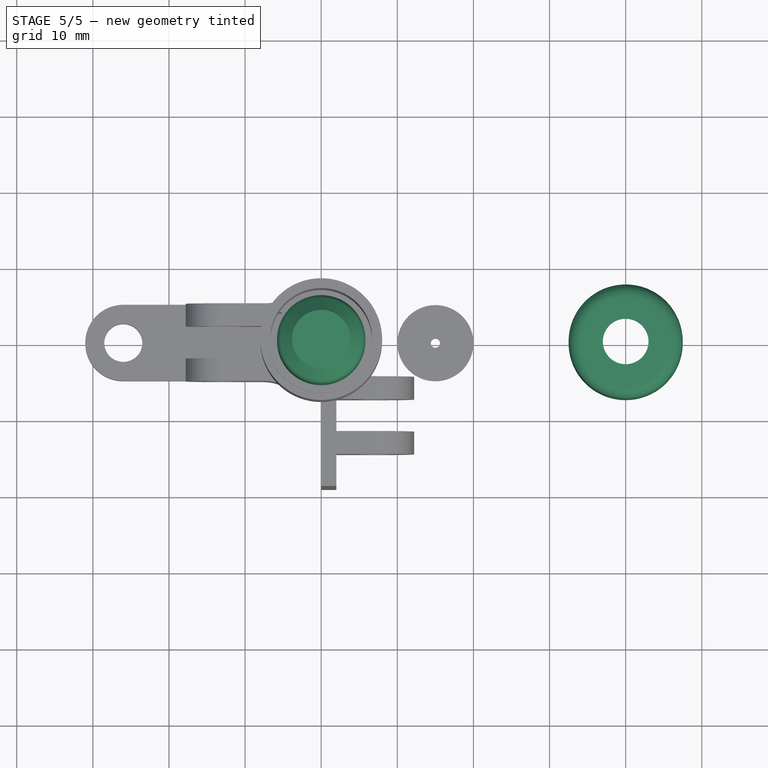
[diagram: stage 5 of 5 — top view after this stage's code; geometry added in this stage tinted green]
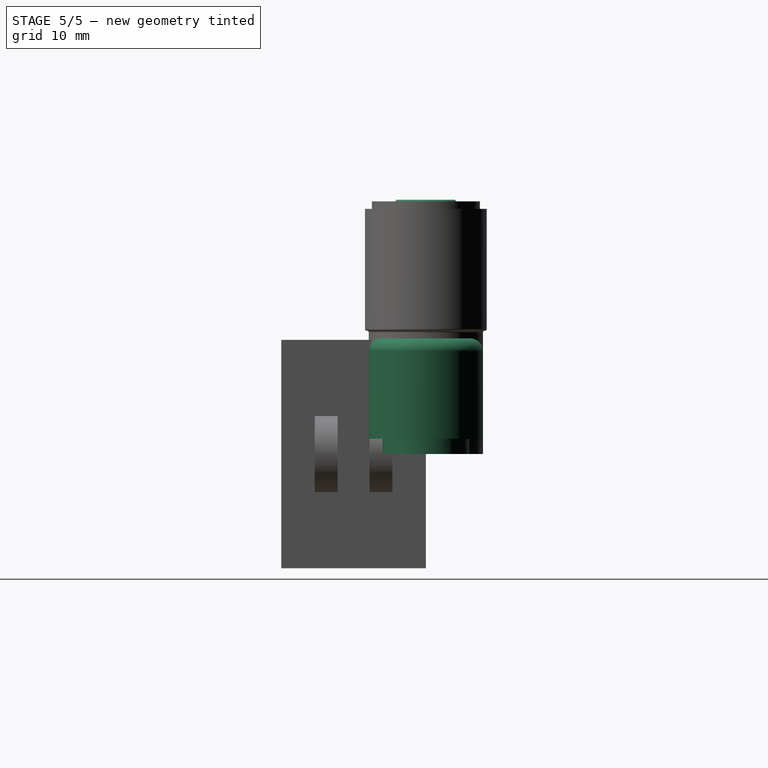
[diagram: stage 5 of 5 — right view after this stage's code; geometry added in this stage tinted green]
FEATURE [Sketcher::SketchObject] Sketch
  FullyConstrained = false
  Placement = pos=(0,0,0) rot=(0.57735,0.57735,0.57735;2.0944rad)
  sketch-geometry (9):
    g0: LineSegment StartX=5.2 StartY=0 StartZ=0 EndX=5.2 EndY=13.2 EndZ=0
    g1: LineSegment StartX=5.2 StartY=13.2 StartZ=0 EndX=3 EndY=13.2 EndZ=0
    g2: LineSegment StartX=3 StartY=13.2 StartZ=0 EndX=3 EndY=15.2 EndZ=0
    g3: LineSegment StartX=7.5 StartY=2 StartZ=0 EndX=5.7 EndY=2 EndZ=0
    g4: LineSegment StartX=5.7 StartY=2 StartZ=0 EndX=5.7 EndY=0 EndZ=0
    g5: LineSegment StartX=5.7 StartY=0 StartZ=0 EndX=5.2 EndY=0 EndZ=0
    g6: LineSegment StartX=3 StartY=15.2 StartZ=0 EndX=5.8 EndY=15.2 EndZ=0
    g7: LineSegment StartX=7.5 StartY=13.5 StartZ=0 EndX=7.5 EndY=2 EndZ=0
    g8: ArcOfCircle CenterX=5.8 CenterY=13.5 CenterZ=0 NormalX=0 NormalY=0 NormalZ=1 AngleXU=0 Radius=1.7 StartAngle=-6.2e-15 EndAngle=1.5708
  constraints (27):
    c: Vertical(g0)
    c: Coincident(g0,g1)
    c: Horizontal(g1)
    c: Coincident(g1,g2)
    c: Vertical(g2)
    c: Horizontal(g3)
    c: Coincident(g3,g4)
    c: Vertical(g4)
    c: Coincident(g4,g5)
    c: Coincident(g5,g0)
    c: DistanceY(g0,g0) = 13.2
    c: DistanceY(g-1,g0) = 0
    c: DistanceX(g-1,g0) = 5.2
    c: DistanceY(g0,g4) = 0
    c: DistanceY(g2,g2) = 2
    c: DistanceX(g5,g5) = 0.5
    c: DistanceY(g4,g4) = 2
    c: Coincident(g2,g6)
    c: Horizontal(g6)
    c: Coincident(g7,g3)
    c: Vertical(g7)
    c: Distance(g6) = 2.8
    c: Radius(g8) = 1.7
    c: Coincident(g8,g7)
    c: Coincident(g8,g6)
    c: DistanceX(g-1,g2) = 3
    c: DistanceX(g-1,g3) = 7.5
FEATURE [Part::Revolution] Revolve  label="_2_"
  Angle = 360
  Axis = (0,0,1)
  Base = (0,0,0)
  FaceMakerClass = Part::FaceMakerBullseye
  Placement = pos=(40,0,0) rot=(0,0,1;0rad)
  Solid = true
  Source = -> Sketch
  Symmetric = false
FEATURE [Sketcher::SketchObject] Sketch001
  FullyConstrained = true
  sketch-geometry (7):
    g0: LineSegment StartX=-2.05 StartY=3.5507 StartZ=0 EndX=-4.1 EndY=-3.8964e-12 EndZ=0
    g1: LineSegment StartX=-4.1 StartY=-3.8964e-12 StartZ=0 EndX=-2.05 EndY=-3.5507 EndZ=0
    g2: LineSegment StartX=-2.05 StartY=-3.5507 StartZ=0 EndX=2.05 EndY=-3.5507 EndZ=0
    g3: LineSegment StartX=2.05 StartY=-3.5507 StartZ=0 EndX=4.1 EndY=3.4155e-12 EndZ=0
    g4: LineSegment StartX=4.1 StartY=3.4155e-12 StartZ=0 EndX=2.05 EndY=3.5507 EndZ=0
    g5: LineSegment StartX=2.05 StartY=3.5507 StartZ=0 EndX=-2.05 EndY=3.5507 EndZ=0
    g6: Circle CenterX=0 CenterY=0 CenterZ=0 NormalX=0 NormalY=0 NormalZ=1 AngleXU=0 Radius=4.1
  constraints (17):
    c: Coincident(g0,g1)
    c: Coincident(g1,g2)
    c: Coincident(g2,g3)
    c: Coincident(g3,g4)
    c: Coincident(g4,g5)
    c: Coincident(g5,g0)
    c: Equal(g0, g1-g5) x5
    c: PointOnObject(g0,g6)
    c: PointOnObject(g1,g6)
    c: PointOnObject(g2,g6)
    c: PointOnObject(g3,g6)
    c: PointOnObject(g4,g6)
    c: PointOnObject(g5,g6)
    c: Radius(g6) = 4.1
    c: DistanceX(g6,g-1) = 0
    c: DistanceY(g-1,g6) = 0
    c: Angle(g2) = 0
FEATURE [Sketcher::SketchObject] Sketch002
  FullyConstrained = true
  Placement = pos=(0,0,12) rot=(0,0,1;0rad)
  sketch-geometry (1):
    g0: Circle CenterX=0 CenterY=0 CenterZ=0 NormalX=0 NormalY=0 NormalZ=1 AngleXU=0 Radius=4.1
  constraints (3):
    c: Radius(g0) = 4.1
    c: DistanceX(g0,g-1) = 0
    c: DistanceY(g-1,g0) = 0
FEATURE [Part::Loft] Loft
  Closed = false
  MaxDegree = 5
  Placement = pos=(0,0,8.2) rot=(0,0,1;0rad)
  Ruled = false
  Sections = -> [Sketch001,Sketch002]
  Solid = true
FEATURE [Sketcher::SketchObject] Sketch003
  FullyConstrained = false
  Placement = pos=(0,0,0) rot=(1,0,0;1.5708rad)
  sketch-geometry (10):
    g0: LineSegment StartX=0 StartY=0 StartZ=0 EndX=1.3 EndY=0 EndZ=0
    g1: LineSegment StartX=1.3 StartY=0 StartZ=0 EndX=1.3 EndY=1.8 EndZ=0
    g2: LineSegment StartX=1.3 StartY=1.8 StartZ=0 EndX=2.8 EndY=1.8 EndZ=0
    g3: LineSegment StartX=2.8 StartY=1.8 StartZ=0 EndX=2.8 EndY=4 EndZ=0
    g4: LineSegment StartX=2.8 StartY=4 StartZ=0 EndX=5.8 EndY=4 EndZ=0
    g5: LineSegment StartX=0 StartY=21 StartZ=0 EndX=0 EndY=0 EndZ=0
    g6: LineSegment StartX=0 StartY=21 StartZ=0 EndX=3.81945 EndY=21 EndZ=0
    g7: LineSegment StartX=3.81945 StartY=21 StartZ=0 EndX=5.35518 EndY=19.4643 EndZ=0
    g8: LineSegment StartX=5.8 StartY=18.3904 StartZ=0 EndX=5.8 EndY=4 EndZ=0
    g9: ArcOfCircle CenterX=4.28129 CenterY=18.3904 CenterZ=0 NormalX=0 NormalY=0 NormalZ=1 AngleXU=0 Radius=1.51871 StartAngle=0 EndAngle=0.785398
  constraints (26):
    c: Coincident(g-1,g0)
    c: PointOnObject(g0,g-1)
    c: Coincident(g0,g1)
    c: Vertical(g1)
    c: Coincident(g1,g2)
    c: Horizontal(g2)
    c: Coincident(g2,g3)
    c: Vertical(g3)
    c: Coincident(g3,g4)
    c: Horizontal(g4)
    c: PointOnObject(g5,g-2)
    c: Coincident(g5,g0)
    c: DistanceX(g0,g0) = 1.3
    c: DistanceY(g1,g1) = 1.8
    c: DistanceX(g2,g2) = 1.5
    c: DistanceY(g3,g3) = 2.2
    c: DistanceX(g4,g4) = 3
    c: Coincident(g5,g6)
    c: Horizontal(g6)
    c: Coincident(g6,g7)
    c: Coincident(g8,g4)
    c: Vertical(g8)
    c: Angle(g7) = -0.785398
    c: DistanceY(g4,g6) = 17
    c: Tangent(g7,g9) = 1.5708
    c: Tangent(g8,g9) = 1.5708
FEATURE [Part::Revolution] Revolve001
  Angle = 360
  Axis = (0,0,1)
  Base = (0,0,0)
  FaceMakerClass = Part::FaceMakerBullseye
  Solid = true
  Source = -> Sketch003
  Symmetric = false
FEATURE [Part::Cut] Cut
  Base = -> Revolve001
  Tool = -> Loft
FEATURE [Sketcher::SketchObject] Sketch004
  FullyConstrained = true
  Placement = pos=(0,0,4) rot=(0,0,1;0rad)
  sketch-geometry (7):
    g0: LineSegment StartX=-2.05 StartY=3.5507 StartZ=0 EndX=-4.1 EndY=-3.8729e-12 EndZ=0
    g1: LineSegment StartX=-4.1 StartY=-3.8729e-12 StartZ=0 EndX=-2.05 EndY=-3.5507 EndZ=0
    g2: LineSegment StartX=-2.05 StartY=-3.5507 StartZ=0 EndX=2.05 EndY=-3.5507 EndZ=0
    g3: LineSegment StartX=2.05 StartY=-3.5507 StartZ=0 EndX=4.1 EndY=3.4044e-12 EndZ=0
    g4: LineSegment StartX=4.1 StartY=3.4044e-12 StartZ=0 EndX=2.05 EndY=3.5507 EndZ=0
    g5: LineSegment StartX=2.05 StartY=3.5507 StartZ=0 EndX=-2.05 EndY=3.5507 EndZ=0
    g6: Circle CenterX=0 CenterY=0 CenterZ=0 NormalX=0 NormalY=0 NormalZ=1 AngleXU=0 Radius=4.1
  constraints (16):
    c: Coincident(g0,g1)
    c: Coincident(g1,g2)
    c: Coincident(g2,g3)
    c: Coincident(g3,g4)
    c: Coincident(g4,g5)
    c: Coincident(g5,g0)
    c: Equal(g0, g1-g5) x5
    c: PointOnObject(g0,g6)
    c: PointOnObject(g1,g6)
    c: PointOnObject(g2,g6)
    c: PointOnObject(g3,g6)
    c: PointOnObject(g4,g6)
    c: PointOnObject(g5,g6)
    c: Coincident(g6,g-1)
    c: Radius(g6) = 4.1
    c: Angle(g2) = 0
FEATURE [Sketcher::SketchObject] Sketch005
  FullyConstrained = true
  sketch-geometry (1):
    g0: Circle CenterX=0 CenterY=0 CenterZ=0 NormalX=0 NormalY=0 NormalZ=1 AngleXU=0 Radius=0.2
  constraints (2):
    c: Coincident(g0,g-1)
    c: Radius(g0) = 0.2
FEATURE [Part::Loft] Loft001
  Closed = false
  MaxDegree = 5
  Placement = pos=(0,0,4.2) rot=(0,0,1;0rad)
  Ruled = false
  Sections = -> [Sketch004,Sketch005]
  Solid = true
FEATURE [Part::Cut] Cut001  label="_1_"
  Base = -> Cut
  Placement = pos=(0,0,12.4) rot=(0,0,1;0rad)
  Tool = -> Loft001
FEATURE [Part::Cut] Cut002  label="_3_"
  Base = -> Revolve002
  Tool = -> Extrude
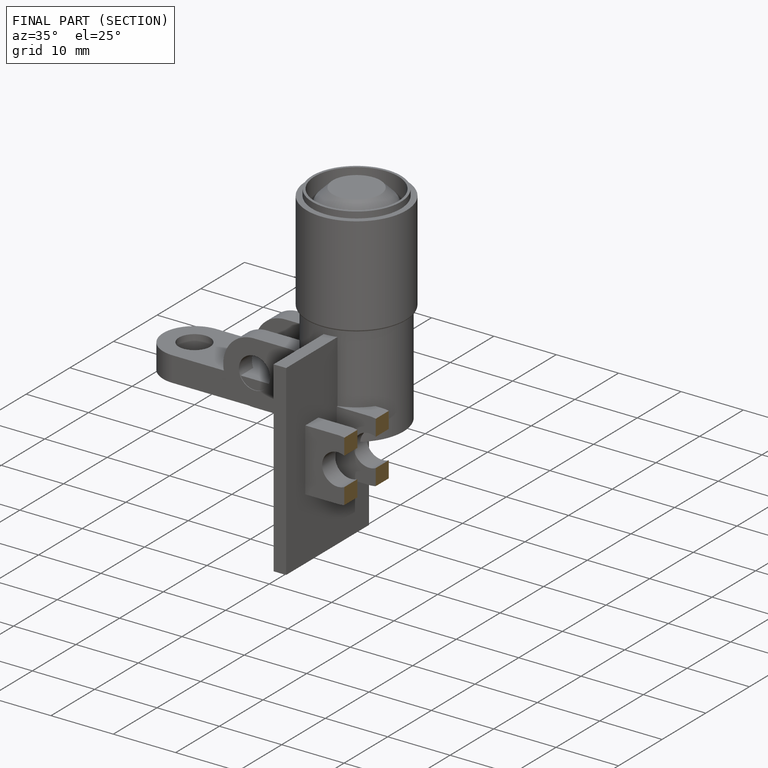
[diagram: finished part — half-section view (interior)]
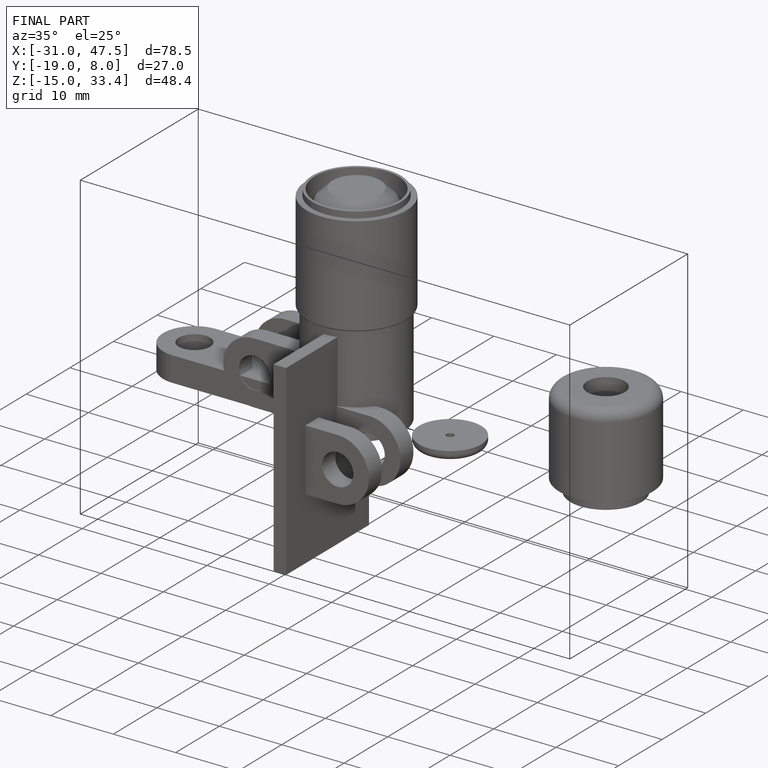
[diagram: finished part — iso view with bounding-box wireframe]
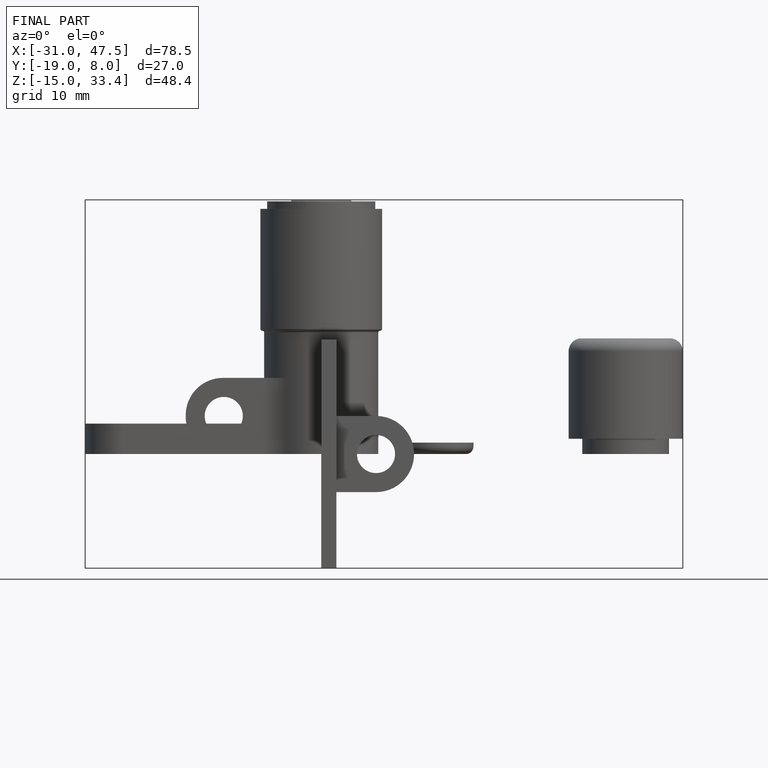
[diagram: finished part — front view with bounding-box wireframe]
